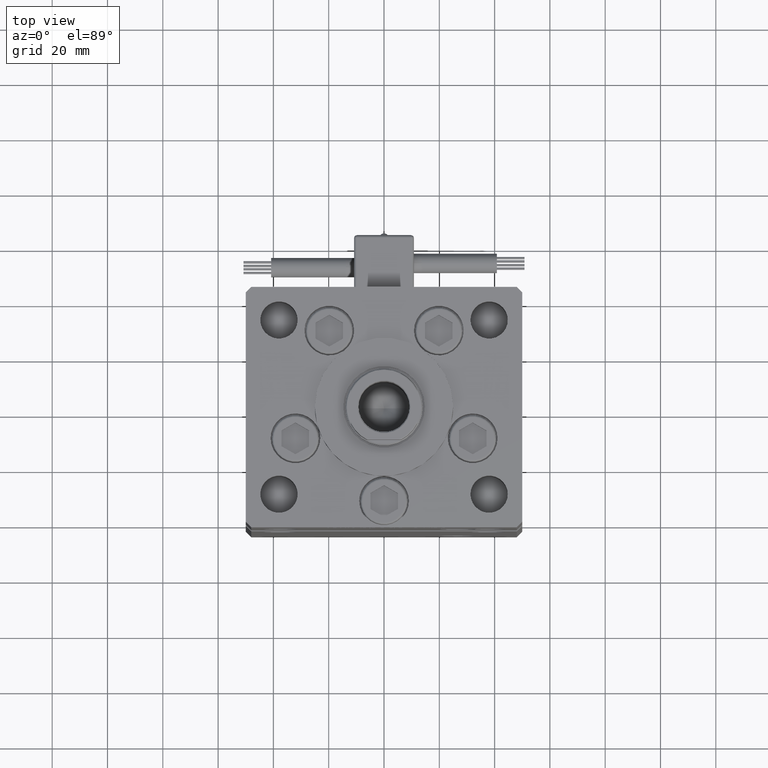
[diagram: clean part render]
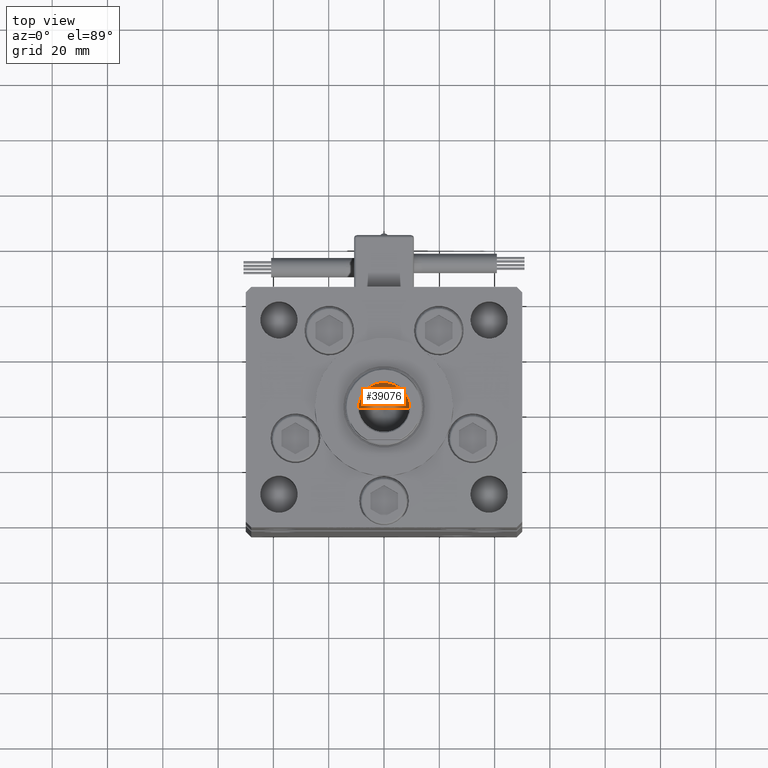
[diagram: same view with one face highlighted and labeled with its STEP entity id]
A machine part, top view. The second image highlights one B-rep face of the part: STEP entity #39076.
In plain terms, the highlighted conical surface has half-angle 59 deg.
Its self-contained STEP definition (entity closure, byte-faithful):
#1253 = CARTESIAN_POINT ( 'NONE',  ( 9.249999999999994671, 0.000000000000000000, 150.2500000000000000 ) ) ;
#1340 = AXIS2_PLACEMENT_3D ( 'NONE', #52474, #26806, #31363 ) ;
#2070 = ORIENTED_EDGE ( 'NONE', *, *, #32818, .T. ) ;
#6612 = VECTOR ( 'NONE', #46374, 1000.000000000000000 ) ;
#7164 = VERTEX_POINT ( 'NONE', #1253 ) ;
#7295 = ORIENTED_EDGE ( 'NONE', *, *, #17888, .F. ) ;
#7493 = DIRECTION ( 'NONE',  ( -0.000000000000000000, -0.000000000000000000, 1.000000000000000000 ) ) ;
#10641 = FACE_OUTER_BOUND ( 'NONE', #42617, .T. ) ;
#11514 = CARTESIAN_POINT ( 'NONE',  ( 9.249999999999994671, 0.000000000000000000, 150.2500000000000000 ) ) ;
#12954 = EDGE_CURVE ( 'NONE', #7164, #44134, #25915, .T. ) ;
#16909 = LINE ( 'NONE', #11514, #27951 ) ;
#17888 = EDGE_CURVE ( 'NONE', #34157, #44134, #45826, .T. ) ;
#18283 = CARTESIAN_POINT ( 'NONE',  ( -1.046994375366439223E-14, 0.000000000000000000, 144.6920392739950501 ) ) ;
#24433 = CARTESIAN_POINT ( 'NONE',  ( -9.249999999999994671, 1.132798289211300909E-15, 150.2500000000000000 ) ) ;
#24581 = CARTESIAN_POINT ( 'NONE',  ( 0.000000000000000000, 0.000000000000000000, 150.2500000000000000 ) ) ;
#24889 = DIRECTION ( 'NONE',  ( 0.8571673007021112234, 0.000000000000000000, 0.5150380749100560429 ) ) ;
#25915 = CIRCLE ( 'NONE', #1340, 9.249999999999994671 ) ;
#26806 = DIRECTION ( 'NONE',  ( -0.000000000000000000, -0.000000000000000000, 1.000000000000000000 ) ) ;
#27951 = VECTOR ( 'NONE', #24889, 1000.000000000000000 ) ;
#29138 = DIRECTION ( 'NONE',  ( 1.000000000000000000, 0.000000000000000000, 0.000000000000000000 ) ) ;
#29289 = CARTESIAN_POINT ( 'NONE',  ( -9.249999999999994671, 1.132798289211300909E-15, 150.2500000000000000 ) ) ;
#31363 = DIRECTION ( 'NONE',  ( 1.000000000000000000, 0.000000000000000000, 0.000000000000000000 ) ) ;
#32818 = EDGE_CURVE ( 'NONE', #34157, #7164, #16909, .T. ) ;
#34157 = VERTEX_POINT ( 'NONE', #18283 ) ;
#39076 = ADVANCED_FACE ( 'NONE', ( #10641 ), #50051, .F. ) ;
#41873 = AXIS2_PLACEMENT_3D ( 'NONE', #24581, #7493, #29138 ) ;
#42617 = EDGE_LOOP ( 'NONE', ( #7295, #2070, #52271 ) ) ;
#44134 = VERTEX_POINT ( 'NONE', #29289 ) ;
#45826 = LINE ( 'NONE', #24433, #6612 ) ;
#46374 = DIRECTION ( 'NONE',  ( -0.8571673007021112234, 1.049727191138617340E-16, 0.5150380749100560429 ) ) ;
#50051 = CONICAL_SURFACE ( 'NONE', #41873, 9.249999999999994671, 1.029744258676652313 ) ;
#52271 = ORIENTED_EDGE ( 'NONE', *, *, #12954, .T. ) ;
#52474 = CARTESIAN_POINT ( 'NONE',  ( 0.000000000000000000, 0.000000000000000000, 150.2500000000000000 ) ) ;